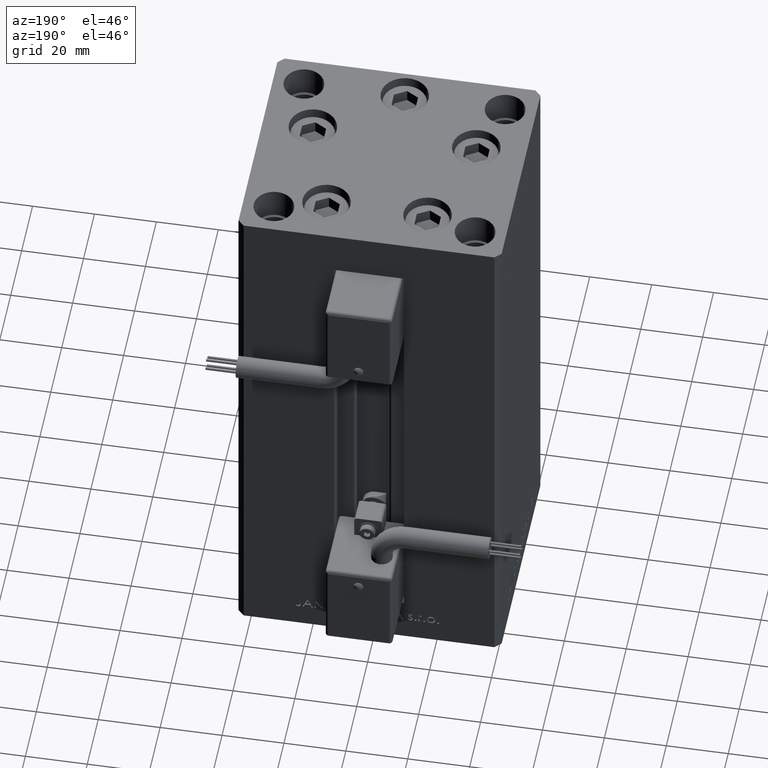
[diagram: clean part render]
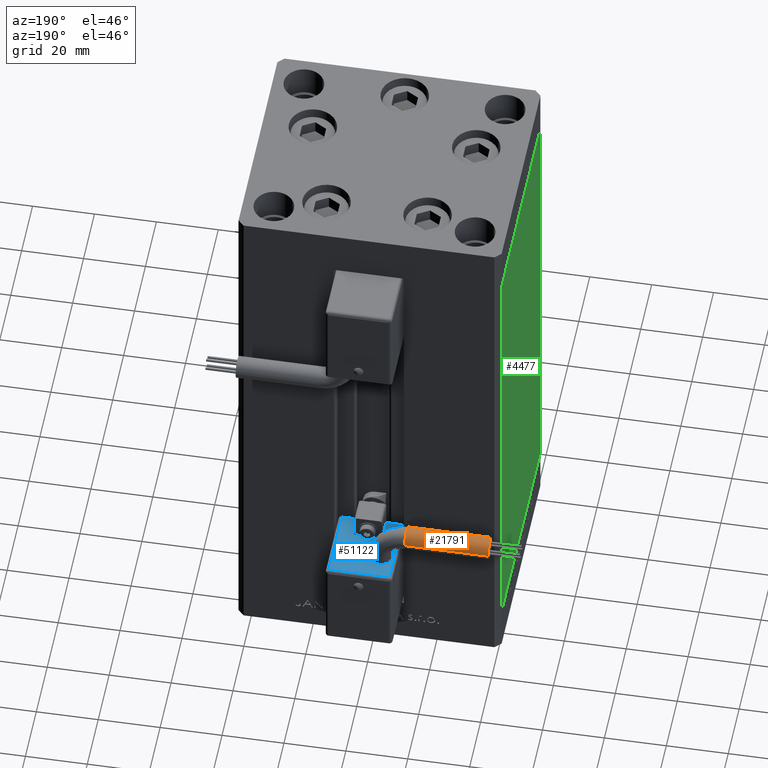
[diagram: same view with three faces highlighted in distinct colors, each labeled with its STEP entity id]
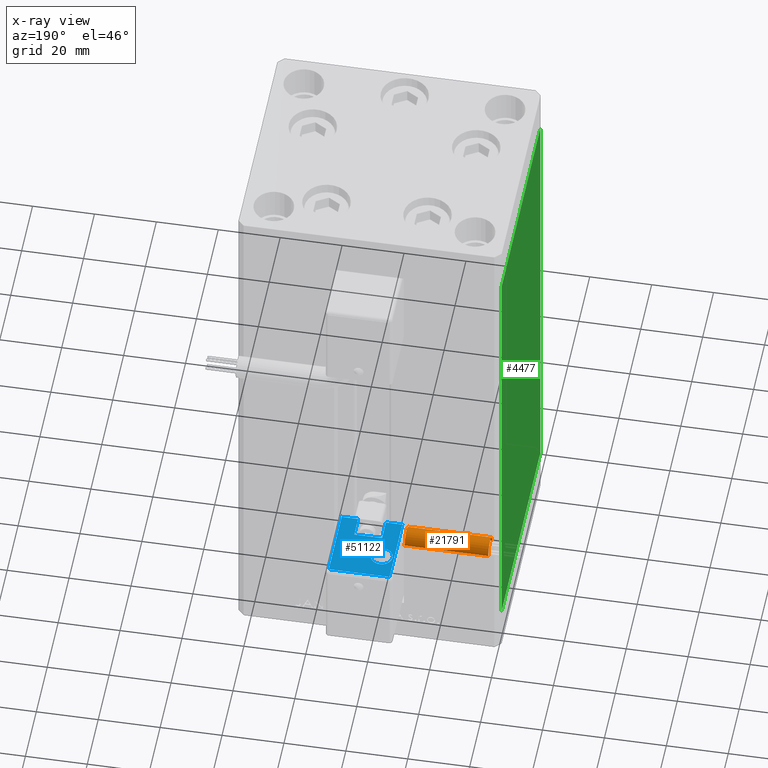
[diagram: x-ray of the same camera — body ghosted, the three highlighted faces saturated]
A machine part, auxiliary view with three faces highlighted in distinct colors.
The next image is the same camera in x-ray (body ghosted, the three faces saturated) — at least one of them is partly hidden behind the body in this view.
Their STEP definitions:

[orange] entity #21791 — the highlighted cylindrical surface (edge-blend (fillet) strip) has radius 3.5 mm, axis along (-1, 0, -0).
#3403 = ORIENTED_EDGE ( 'NONE', *, *, #40081, .F. ) ;
#4145 = EDGE_LOOP ( 'NONE', ( #23129, #50559, #38020, #38133, #3403 ) ) ;
#4438 = CIRCLE ( 'NONE', #17840, 3.500000000000003109 ) ;
#5101 = CARTESIAN_POINT ( 'NONE',  ( 13.79999999999999893, 38.50000000000000000, -65.00000000000000000 ) ) ;
#5744 = EDGE_CURVE ( 'NONE', #44976, #6992, #22510, .T. ) ;
#6794 = CARTESIAN_POINT ( 'NONE',  ( 40.80000000000000426, 42.00000000000000000, -65.00000000000000000 ) ) ;
#6992 = VERTEX_POINT ( 'NONE', #30523 ) ;
#7109 = CARTESIAN_POINT ( 'NONE',  ( 13.79999999999999893, 42.00000000000000000, -68.50000000000000000 ) ) ;
#9653 = CYLINDRICAL_SURFACE ( 'NONE', #33585, 3.500000000000003109 ) ;
#11167 = EDGE_CURVE ( 'NONE', #37258, #44976, #33373, .T. ) ;
#12368 = VECTOR ( 'NONE', #30132, 1000.000000000000000 ) ;
#13366 = CARTESIAN_POINT ( 'NONE',  ( 40.80000000000000426, 38.50000000000000000, -65.00000000000000000 ) ) ;
#14152 = CARTESIAN_POINT ( 'NONE',  ( 13.80000000000000071, 45.50000000000000711, -65.00000000000000000 ) ) ;
#15051 = VERTEX_POINT ( 'NONE', #13366 ) ;
#15392 = CARTESIAN_POINT ( 'NONE',  ( 13.79999999999999893, 45.50000000000000711, -65.00000000000000000 ) ) ;
#15614 = CARTESIAN_POINT ( 'NONE',  ( 13.79999999999999893, 42.00000000000000000, -65.00000000000000000 ) ) ;
#17840 = AXIS2_PLACEMENT_3D ( 'NONE', #6794, #22233, #30110 ) ;
#20922 = CARTESIAN_POINT ( 'NONE',  ( 13.79999999999999893, 42.00000000000000000, -65.00000000000000000 ) ) ;
#21791 = ADVANCED_FACE ( 'NONE', ( #29808 ), #9653, .T. ) ;
#22233 = DIRECTION ( 'NONE',  ( 1.000000000000000000, 0.000000000000000000, 2.220446049250000002E-16 ) ) ;
#22510 = LINE ( 'NONE', #14152, #12368 ) ;
#22557 = AXIS2_PLACEMENT_3D ( 'NONE', #23216, #47264, #39176 ) ;
#22598 = CIRCLE ( 'NONE', #22557, 3.500000000000003109 ) ;
#23129 = ORIENTED_EDGE ( 'NONE', *, *, #41287, .T. ) ;
#23216 = CARTESIAN_POINT ( 'NONE',  ( 13.79999999999999893, 42.00000000000000000, -65.00000000000000000 ) ) ;
#25874 = DIRECTION ( 'NONE',  ( -4.956352788505158337E-16, -1.000000000000000000, 0.000000000000000000 ) ) ;
#28232 = CARTESIAN_POINT ( 'NONE',  ( 13.79999999999999716, 38.50000000000000000, -65.00000000000000000 ) ) ;
#29808 = FACE_OUTER_BOUND ( 'NONE', #4145, .T. ) ;
#30090 = VECTOR ( 'NONE', #44168, 1000.000000000000000 ) ;
#30110 = DIRECTION ( 'NONE',  ( 0.000000000000000000, 0.000000000000000000, -1.000000000000000000 ) ) ;
#30132 = DIRECTION ( 'NONE',  ( 1.000000000000000000, -2.599999999999999847E-16, 2.220446049250000002E-16 ) ) ;
#30523 = CARTESIAN_POINT ( 'NONE',  ( 40.80000000000000426, 45.50000000000000711, -65.00000000000000000 ) ) ;
#31595 = DIRECTION ( 'NONE',  ( 0.000000000000000000, 0.000000000000000000, -1.000000000000000000 ) ) ;
#33373 = CIRCLE ( 'NONE', #39170, 3.500000000000003109 ) ;
#33585 = AXIS2_PLACEMENT_3D ( 'NONE', #20922, #45992, #25874 ) ;
#37258 = VERTEX_POINT ( 'NONE', #7109 ) ;
#38020 = ORIENTED_EDGE ( 'NONE', *, *, #5744, .T. ) ;
#38133 = ORIENTED_EDGE ( 'NONE', *, *, #49365, .F. ) ;
#39170 = AXIS2_PLACEMENT_3D ( 'NONE', #15614, #47249, #31595 ) ;
#39176 = DIRECTION ( 'NONE',  ( 0.000000000000000000, 0.000000000000000000, -1.000000000000000000 ) ) ;
#40081 = EDGE_CURVE ( 'NONE', #43215, #15051, #40779, .T. ) ;
#40779 = LINE ( 'NONE', #28232, #30090 ) ;
#41287 = EDGE_CURVE ( 'NONE', #43215, #37258, #22598, .T. ) ;
#43215 = VERTEX_POINT ( 'NONE', #5101 ) ;
#44168 = DIRECTION ( 'NONE',  ( 1.000000000000000000, -2.599999999999999847E-16, 2.220446049250000002E-16 ) ) ;
#44976 = VERTEX_POINT ( 'NONE', #15392 ) ;
#45992 = DIRECTION ( 'NONE',  ( 1.000000000000000000, -2.599999999999999847E-16, 2.220446049250000002E-16 ) ) ;
#47249 = DIRECTION ( 'NONE',  ( 1.000000000000000000, 0.000000000000000000, 2.220446049250000002E-16 ) ) ;
#47264 = DIRECTION ( 'NONE',  ( 1.000000000000000000, 0.000000000000000000, 2.220446049250000002E-16 ) ) ;
#49365 = EDGE_CURVE ( 'NONE', #15051, #6992, #4438, .T. ) ;
#50559 = ORIENTED_EDGE ( 'NONE', *, *, #11167, .T. ) ;

[blue] entity #51122 — the highlighted planar face has unit normal (-0, -0, -1).
#1833 = VECTOR ( 'NONE', #13291, 1000.000000000000000 ) ;
#2219 = AXIS2_PLACEMENT_3D ( 'NONE', #19082, #27178, #26931 ) ;
#2358 = CARTESIAN_POINT ( 'NONE',  ( 5.799999999999999822, 45.50000000000000711, -55.00000000000000000 ) ) ;
#3044 = DIRECTION ( 'NONE',  ( 0.000000000000000000, -1.000000000000000000, 0.000000000000000000 ) ) ;
#3744 = ORIENTED_EDGE ( 'NONE', *, *, #5014, .F. ) ;
#3987 = VECTOR ( 'NONE', #9967, 1000.000000000000000 ) ;
#4816 = VECTOR ( 'NONE', #51653, 1000.000000000000000 ) ;
#5014 = EDGE_CURVE ( 'NONE', #27650, #49618, #45273, .T. ) ;
#5919 = ORIENTED_EDGE ( 'NONE', *, *, #29375, .F. ) ;
#6028 = CARTESIAN_POINT ( 'NONE',  ( 10.80000000000000071, 51.50000000000000000, -55.00000000000000000 ) ) ;
#6368 = VERTEX_POINT ( 'NONE', #35899 ) ;
#6802 = VECTOR ( 'NONE', #42442, 1000.000000000000000 ) ;
#7680 = CIRCLE ( 'NONE', #18527, 3.500000000000003109 ) ;
#8132 = EDGE_CURVE ( 'NONE', #27650, #27519, #35718, .T. ) ;
#9089 = EDGE_CURVE ( 'NONE', #40729, #42328, #38940, .T. ) ;
#9374 = CARTESIAN_POINT ( 'NONE',  ( 10.80000000000000071, 50.50000000000000000, -55.00000000000000000 ) ) ;
#9548 = EDGE_CURVE ( 'NONE', #6368, #40260, #39837, .T. ) ;
#9967 = DIRECTION ( 'NONE',  ( 2.664535259099999699E-32, -1.000000000000000000, -1.200000000000000024E-16 ) ) ;
#10451 = DIRECTION ( 'NONE',  ( -3.108624468950000014E-32, 1.000000000000000000, 1.400000000000000069E-16 ) ) ;
#11305 = CARTESIAN_POINT ( 'NONE',  ( 10.80000000000000071, 27.00000000000000000, -55.00000000000000000 ) ) ;
#11624 = CARTESIAN_POINT ( 'NONE',  ( 4.500000000000000000, 27.00000000000000000, -55.00000000000000000 ) ) ;
#13291 = DIRECTION ( 'NONE',  ( 1.000000000000000000, 0.000000000000000000, 2.220446049250000002E-16 ) ) ;
#14460 = LINE ( 'NONE', #11305, #6802 ) ;
#14566 = DIRECTION ( 'NONE',  ( 2.220446049250000002E-16, 1.400000000000000069E-16, -1.000000000000000000 ) ) ;
#15997 = ORIENTED_EDGE ( 'NONE', *, *, #9089, .T. ) ;
#15998 = EDGE_CURVE ( 'NONE', #40260, #49618, #14460, .T. ) ;
#16128 = VERTEX_POINT ( 'NONE', #47879 ) ;
#18013 = VERTEX_POINT ( 'NONE', #51080 ) ;
#18527 = AXIS2_PLACEMENT_3D ( 'NONE', #50387, #14566, #3044 ) ;
#18542 = LINE ( 'NONE', #34497, #47155 ) ;
#19082 = CARTESIAN_POINT ( 'NONE',  ( 5.799999999999999822, 42.00000000000000000, -55.00000000000000000 ) ) ;
#19308 = DIRECTION ( 'NONE',  ( 2.664535259099999699E-32, -1.000000000000000000, -1.200000000000000024E-16 ) ) ;
#19703 = EDGE_CURVE ( 'NONE', #16128, #40729, #34413, .T. ) ;
#20159 = VECTOR ( 'NONE', #38065, 1000.000000000000000 ) ;
#22388 = ORIENTED_EDGE ( 'NONE', *, *, #8132, .T. ) ;
#24688 = EDGE_CURVE ( 'NONE', #27519, #16128, #18542, .T. ) ;
#26686 = FACE_OUTER_BOUND ( 'NONE', #35021, .T. ) ;
#26929 = CARTESIAN_POINT ( 'NONE',  ( -9.799999999999998934, 51.50000000000000000, -55.00000000000000000 ) ) ;
#26931 = DIRECTION ( 'NONE',  ( 0.000000000000000000, -1.000000000000000000, 0.000000000000000000 ) ) ;
#27086 = CARTESIAN_POINT ( 'NONE',  ( -9.799999999999998934, 27.00000000000000000, -55.00000000000000000 ) ) ;
#27178 = DIRECTION ( 'NONE',  ( 2.220446049250000002E-16, 1.400000000000000069E-16, -1.000000000000000000 ) ) ;
#27519 = VERTEX_POINT ( 'NONE', #38361 ) ;
#27650 = VERTEX_POINT ( 'NONE', #39122 ) ;
#27716 = EDGE_LOOP ( 'NONE', ( #46103, #5919 ) ) ;
#29375 = EDGE_CURVE ( 'NONE', #46759, #18013, #33960, .T. ) ;
#29713 = CARTESIAN_POINT ( 'NONE',  ( 10.80000000000000071, 27.00000000000000000, -55.00000000000000000 ) ) ;
#30382 = ORIENTED_EDGE ( 'NONE', *, *, #24688, .T. ) ;
#32540 = DIRECTION ( 'NONE',  ( 3.108624468950000014E-32, -1.000000000000000000, -1.400000000000000069E-16 ) ) ;
#33269 = ORIENTED_EDGE ( 'NONE', *, *, #9548, .T. ) ;
#33960 = CIRCLE ( 'NONE', #2219, 3.500000000000003109 ) ;
#34118 = VECTOR ( 'NONE', #10451, 1000.000000000000000 ) ;
#34283 = PLANE ( 'NONE',  #34847 ) ;
#34413 = LINE ( 'NONE', #29713, #20159 ) ;
#34497 = CARTESIAN_POINT ( 'NONE',  ( -4.500000000000000000, 34.00000000000000000, -55.00000000000000000 ) ) ;
#34847 = AXIS2_PLACEMENT_3D ( 'NONE', #6028, #46537, #42626 ) ;
#35021 = EDGE_LOOP ( 'NONE', ( #30382, #36335, #15997, #36434, #33269, #51616, #3744, #22388 ) ) ;
#35253 = CARTESIAN_POINT ( 'NONE',  ( 9.799999999999998934, 27.00000000000000000, -55.00000000000000000 ) ) ;
#35718 = LINE ( 'NONE', #46713, #4816 ) ;
#35899 = CARTESIAN_POINT ( 'NONE',  ( 9.799999999999998934, 50.50000000000000000, -55.00000000000000000 ) ) ;
#36335 = ORIENTED_EDGE ( 'NONE', *, *, #19703, .T. ) ;
#36434 = ORIENTED_EDGE ( 'NONE', *, *, #48360, .T. ) ;
#37092 = LINE ( 'NONE', #9374, #1833 ) ;
#38065 = DIRECTION ( 'NONE',  ( -1.000000000000000000, 0.000000000000000000, -2.220446049250000002E-16 ) ) ;
#38361 = CARTESIAN_POINT ( 'NONE',  ( -4.500000000000000000, 34.00000000000000000, -55.00000000000000000 ) ) ;
#38940 = LINE ( 'NONE', #26929, #34118 ) ;
#39122 = CARTESIAN_POINT ( 'NONE',  ( 4.500000000000000000, 34.00000000000000000, -55.00000000000000000 ) ) ;
#39837 = LINE ( 'NONE', #40351, #43270 ) ;
#40260 = VERTEX_POINT ( 'NONE', #35253 ) ;
#40351 = CARTESIAN_POINT ( 'NONE',  ( 9.799999999999998934, 26.00000000000000000, -55.00000000000000000 ) ) ;
#40729 = VERTEX_POINT ( 'NONE', #27086 ) ;
#42328 = VERTEX_POINT ( 'NONE', #50118 ) ;
#42366 = FACE_BOUND ( 'NONE', #27716, .T. ) ;
#42442 = DIRECTION ( 'NONE',  ( -1.000000000000000000, 0.000000000000000000, -2.220446049250000002E-16 ) ) ;
#42626 = DIRECTION ( 'NONE',  ( 1.000000000000000000, 2.220446049250000002E-16, 0.000000000000000000 ) ) ;
#43270 = VECTOR ( 'NONE', #32540, 1000.000000000000000 ) ;
#45273 = LINE ( 'NONE', #46041, #3987 ) ;
#46041 = CARTESIAN_POINT ( 'NONE',  ( 4.500000000000000000, 34.00000000000000000, -55.00000000000000000 ) ) ;
#46103 = ORIENTED_EDGE ( 'NONE', *, *, #48535, .F. ) ;
#46537 = DIRECTION ( 'NONE',  ( 3.108624468950000014E-32, -1.400000000000000069E-16, 1.000000000000000000 ) ) ;
#46713 = CARTESIAN_POINT ( 'NONE',  ( 4.500000000000000000, 34.00000000000000000, -55.00000000000000000 ) ) ;
#46759 = VERTEX_POINT ( 'NONE', #2358 ) ;
#47155 = VECTOR ( 'NONE', #19308, 1000.000000000000000 ) ;
#47879 = CARTESIAN_POINT ( 'NONE',  ( -4.500000000000000000, 27.00000000000000000, -55.00000000000000000 ) ) ;
#48360 = EDGE_CURVE ( 'NONE', #42328, #6368, #37092, .T. ) ;
#48535 = EDGE_CURVE ( 'NONE', #18013, #46759, #7680, .T. ) ;
#49618 = VERTEX_POINT ( 'NONE', #11624 ) ;
#50118 = CARTESIAN_POINT ( 'NONE',  ( -9.799999999999998934, 50.50000000000000000, -55.00000000000000000 ) ) ;
#50387 = CARTESIAN_POINT ( 'NONE',  ( 5.799999999999999822, 42.00000000000000000, -55.00000000000000000 ) ) ;
#51080 = CARTESIAN_POINT ( 'NONE',  ( 5.799999999999999822, 38.50000000000000000, -55.00000000000000000 ) ) ;
#51122 = ADVANCED_FACE ( 'NONE', ( #26686, #42366 ), #34283, .F. ) ;
#51616 = ORIENTED_EDGE ( 'NONE', *, *, #15998, .T. ) ;
#51653 = DIRECTION ( 'NONE',  ( -1.000000000000000000, 0.000000000000000000, -2.220446049250000002E-16 ) ) ;

[green] entity #4477 — the highlighted planar face has unit normal (1, 0, 0).
#802 = ORIENTED_EDGE ( 'NONE', *, *, #17499, .F. ) ;
#2659 = VECTOR ( 'NONE', #18283, 1000.000000000000000 ) ;
#3307 = FACE_OUTER_BOUND ( 'NONE', #5764, .T. ) ;
#4477 = ADVANCED_FACE ( 'NONE', ( #3307 ), #16112, .F. ) ;
#5764 = EDGE_LOOP ( 'NONE', ( #45995, #802, #21358, #16043 ) ) ;
#6314 = VECTOR ( 'NONE', #42407, 1000.000000000000000 ) ;
#9216 = VERTEX_POINT ( 'NONE', #37026 ) ;
#9843 = LINE ( 'NONE', #25530, #10806 ) ;
#10806 = VECTOR ( 'NONE', #41748, 1000.000000000000000 ) ;
#11255 = EDGE_CURVE ( 'NONE', #39875, #14068, #9843, .T. ) ;
#12400 = VECTOR ( 'NONE', #15939, 1000.000000000000000 ) ;
#13297 = CARTESIAN_POINT ( 'NONE',  ( -42.50000000000000711, 35.50000000000001421, 0.000000000000000000 ) ) ;
#13507 = CARTESIAN_POINT ( 'NONE',  ( -42.50000000000000711, 35.50000000000001421, 148.5000000000000000 ) ) ;
#14068 = VERTEX_POINT ( 'NONE', #13297 ) ;
#14093 = CARTESIAN_POINT ( 'NONE',  ( -42.49999999999998579, -35.50000000000000711, 148.5000000000000000 ) ) ;
#15939 = DIRECTION ( 'NONE',  ( 2.931927001650941360E-16, -1.000000000000000000, 0.000000000000000000 ) ) ;
#16043 = ORIENTED_EDGE ( 'NONE', *, *, #11255, .T. ) ;
#16112 = PLANE ( 'NONE',  #35747 ) ;
#17499 = EDGE_CURVE ( 'NONE', #9216, #24177, #42586, .T. ) ;
#18283 = DIRECTION ( 'NONE',  ( -0.000000000000000000, -0.000000000000000000, -1.000000000000000000 ) ) ;
#21358 = ORIENTED_EDGE ( 'NONE', *, *, #37574, .F. ) ;
#24177 = VERTEX_POINT ( 'NONE', #39393 ) ;
#25530 = CARTESIAN_POINT ( 'NONE',  ( -42.50000000000000711, 35.50000000000001421, 148.5000000000000000 ) ) ;
#26728 = LINE ( 'NONE', #42911, #6314 ) ;
#28286 = EDGE_CURVE ( 'NONE', #14068, #24177, #26728, .T. ) ;
#29093 = CARTESIAN_POINT ( 'NONE',  ( -42.50000000000000711, 35.50000000000001421, 148.5000000000000000 ) ) ;
#35747 = AXIS2_PLACEMENT_3D ( 'NONE', #39654, #51677, #39404 ) ;
#37026 = CARTESIAN_POINT ( 'NONE',  ( -42.49999999999998579, -35.50000000000000711, 148.5000000000000000 ) ) ;
#37574 = EDGE_CURVE ( 'NONE', #39875, #9216, #37582, .T. ) ;
#37582 = LINE ( 'NONE', #13507, #12400 ) ;
#39393 = CARTESIAN_POINT ( 'NONE',  ( -42.49999999999998579, -35.50000000000000711, 0.000000000000000000 ) ) ;
#39404 = DIRECTION ( 'NONE',  ( -2.931927001650941360E-16, 1.000000000000000000, 0.000000000000000000 ) ) ;
#39654 = CARTESIAN_POINT ( 'NONE',  ( -42.50000000000000711, 35.50000000000001421, 148.5000000000000000 ) ) ;
#39875 = VERTEX_POINT ( 'NONE', #29093 ) ;
#41748 = DIRECTION ( 'NONE',  ( -0.000000000000000000, -0.000000000000000000, -1.000000000000000000 ) ) ;
#42407 = DIRECTION ( 'NONE',  ( 2.931927001650941360E-16, -1.000000000000000000, 0.000000000000000000 ) ) ;
#42586 = LINE ( 'NONE', #14093, #2659 ) ;
#42911 = CARTESIAN_POINT ( 'NONE',  ( -42.50000000000000711, 35.50000000000001421, 0.000000000000000000 ) ) ;
#45995 = ORIENTED_EDGE ( 'NONE', *, *, #28286, .T. ) ;
#51677 = DIRECTION ( 'NONE',  ( 1.000000000000000000, 2.931927001650941360E-16, -0.000000000000000000 ) ) ;